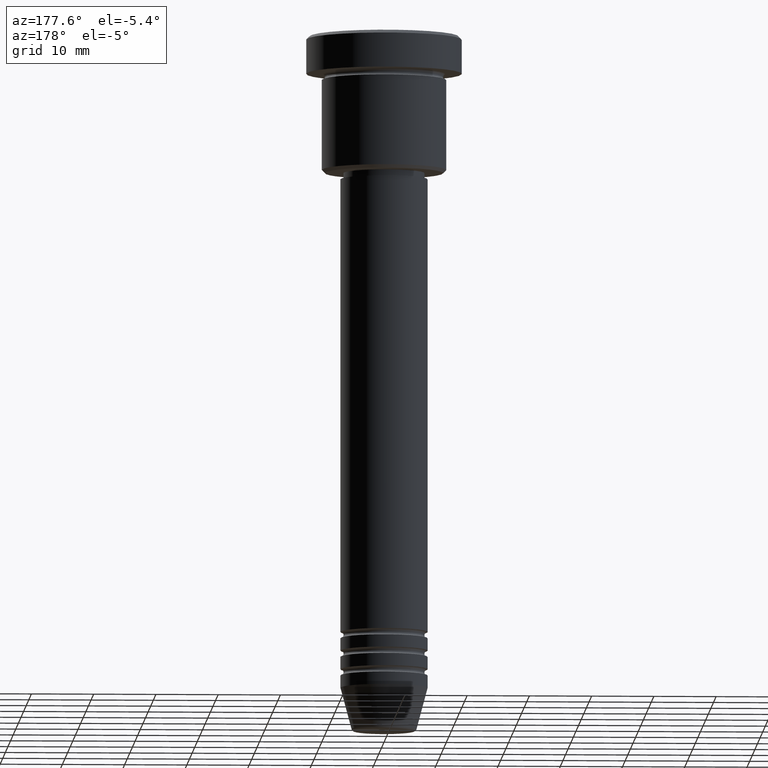
[diagram: clean part render]
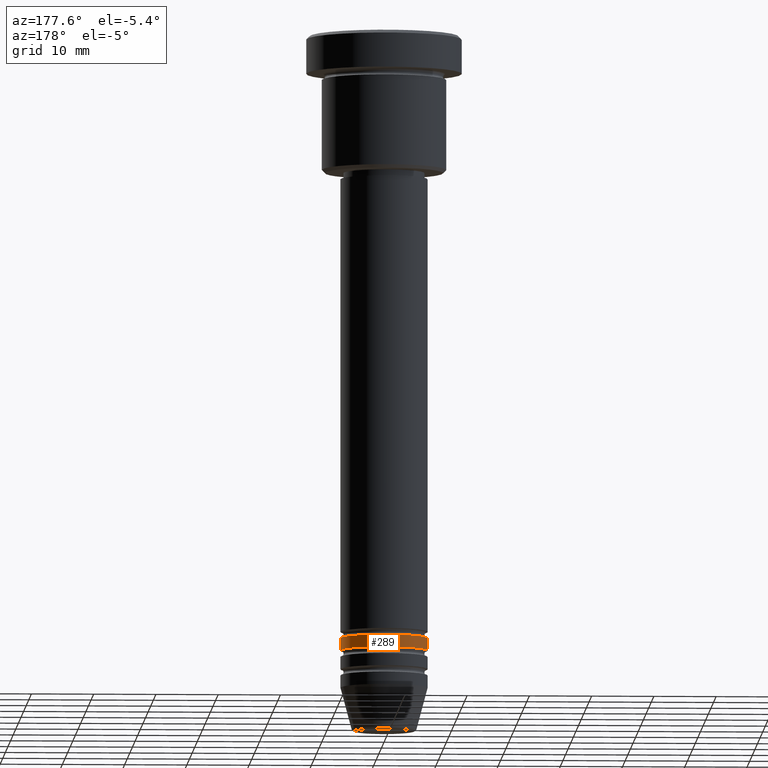
[diagram: same view with one face highlighted and labeled with its STEP entity id]
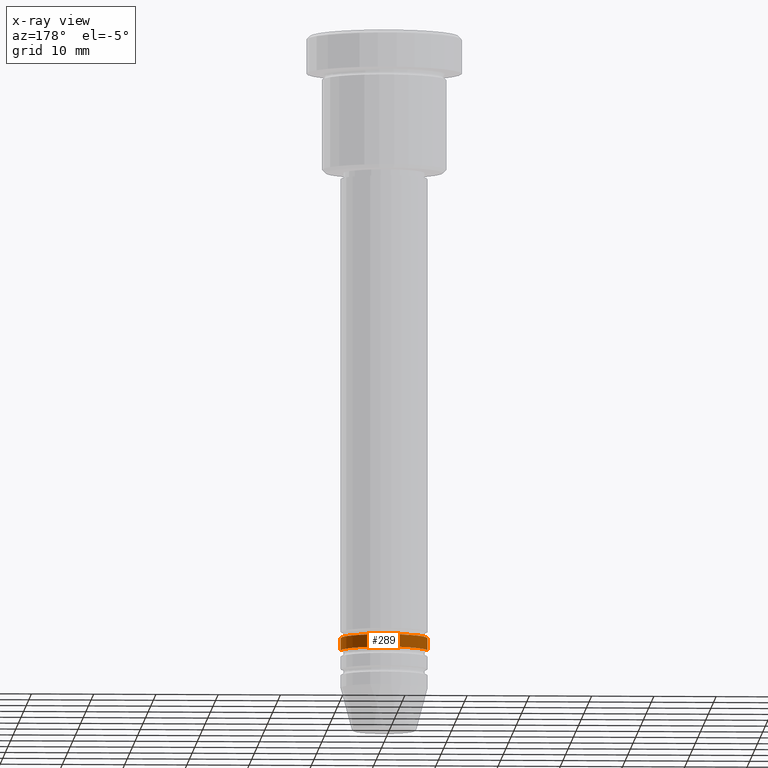
[diagram: x-ray of the same camera — body ghosted, the highlighted face saturated]
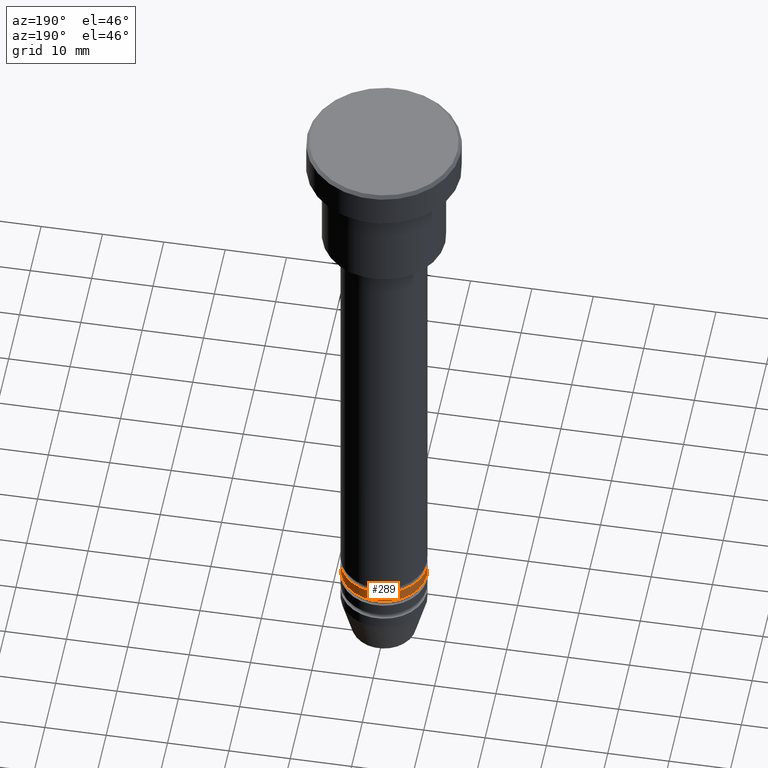
[diagram: same view with one face highlighted and labeled with its STEP entity id]
A machine part, auxiliary view. The second image highlights one B-rep face of the part: STEP entity #289.
The next image is the same camera in x-ray: the body ghosted, the highlighted face saturated — about 0% of this face is hidden behind the body in this view.
A second angle (auxiliary view) of the same face is appended — the face is thin or edge-on in the first view.
In plain terms, the highlighted cylindrical surface (partial cylindrical patch) has radius 7 mm, axis along (-0, -0, 1).
Its self-contained STEP definition (entity closure, byte-faithful):
#4 = CARTESIAN_POINT ( 'NONE',  ( 7.000000000000000000, 0.000000000000000000, -98.99999999999997158 ) ) ;
#56 = CARTESIAN_POINT ( 'NONE',  ( -7.000000000000000000, 8.572527594031473190E-16, 0.000000000000000000 ) ) ;
#61 = VERTEX_POINT ( 'NONE', #4 ) ;
#66 = DIRECTION ( 'NONE',  ( -0.000000000000000000, -0.000000000000000000, 1.000000000000000000 ) ) ;
#80 = CARTESIAN_POINT ( 'NONE',  ( 7.000000000000000000, 0.000000000000000000, 0.000000000000000000 ) ) ;
#93 = CARTESIAN_POINT ( 'NONE',  ( -7.000000000000000000, 8.572527594031473190E-16, -98.99999999999997158 ) ) ;
#135 = VERTEX_POINT ( 'NONE', #532 ) ;
#147 = AXIS2_PLACEMENT_3D ( 'NONE', #1165, #528, #889 ) ;
#262 = VERTEX_POINT ( 'NONE', #787 ) ;
#289 = ADVANCED_FACE ( 'NONE', ( #504 ), #864, .T. ) ;
#311 = VECTOR ( 'NONE', #1037, 1000.000000000000000 ) ;
#344 = LINE ( 'NONE', #80, #884 ) ;
#362 = EDGE_CURVE ( 'NONE', #1074, #262, #871, .T. ) ;
#382 = EDGE_LOOP ( 'NONE', ( #851, #999, #804, #631 ) ) ;
#415 = CIRCLE ( 'NONE', #963, 7.000000000000000000 ) ;
#441 = CARTESIAN_POINT ( 'NONE',  ( 0.000000000000000000, 0.000000000000000000, -98.99999999999997158 ) ) ;
#504 = FACE_OUTER_BOUND ( 'NONE', #382, .T. ) ;
#528 = DIRECTION ( 'NONE',  ( -0.000000000000000000, -0.000000000000000000, 1.000000000000000000 ) ) ;
#532 = CARTESIAN_POINT ( 'NONE',  ( 7.000000000000000000, 0.000000000000000000, -96.99999999999998579 ) ) ;
#575 = EDGE_CURVE ( 'NONE', #61, #135, #344, .T. ) ;
#581 = AXIS2_PLACEMENT_3D ( 'NONE', #795, #1161, #1169 ) ;
#601 = CIRCLE ( 'NONE', #147, 7.000000000000000000 ) ;
#607 = DIRECTION ( 'NONE',  ( 1.000000000000000000, 0.000000000000000000, 0.000000000000000000 ) ) ;
#629 = DIRECTION ( 'NONE',  ( -0.000000000000000000, -0.000000000000000000, 1.000000000000000000 ) ) ;
#631 = ORIENTED_EDGE ( 'NONE', *, *, #575, .F. ) ;
#787 = CARTESIAN_POINT ( 'NONE',  ( -7.000000000000000000, 8.572527594031473190E-16, -96.99999999999998579 ) ) ;
#795 = CARTESIAN_POINT ( 'NONE',  ( 0.000000000000000000, 0.000000000000000000, 0.000000000000000000 ) ) ;
#804 = ORIENTED_EDGE ( 'NONE', *, *, #1060, .F. ) ;
#851 = ORIENTED_EDGE ( 'NONE', *, *, #985, .T. ) ;
#864 = CYLINDRICAL_SURFACE ( 'NONE', #581, 7.000000000000000000 ) ;
#871 = LINE ( 'NONE', #56, #311 ) ;
#884 = VECTOR ( 'NONE', #629, 1000.000000000000000 ) ;
#889 = DIRECTION ( 'NONE',  ( 1.000000000000000000, 0.000000000000000000, 0.000000000000000000 ) ) ;
#963 = AXIS2_PLACEMENT_3D ( 'NONE', #441, #66, #607 ) ;
#985 = EDGE_CURVE ( 'NONE', #61, #1074, #415, .T. ) ;
#999 = ORIENTED_EDGE ( 'NONE', *, *, #362, .T. ) ;
#1037 = DIRECTION ( 'NONE',  ( -0.000000000000000000, -0.000000000000000000, 1.000000000000000000 ) ) ;
#1060 = EDGE_CURVE ( 'NONE', #135, #262, #601, .T. ) ;
#1074 = VERTEX_POINT ( 'NONE', #93 ) ;
#1161 = DIRECTION ( 'NONE',  ( -0.000000000000000000, -0.000000000000000000, 1.000000000000000000 ) ) ;
#1165 = CARTESIAN_POINT ( 'NONE',  ( 0.000000000000000000, 0.000000000000000000, -96.99999999999998579 ) ) ;
#1169 = DIRECTION ( 'NONE',  ( 1.000000000000000000, 0.000000000000000000, 0.000000000000000000 ) ) ;